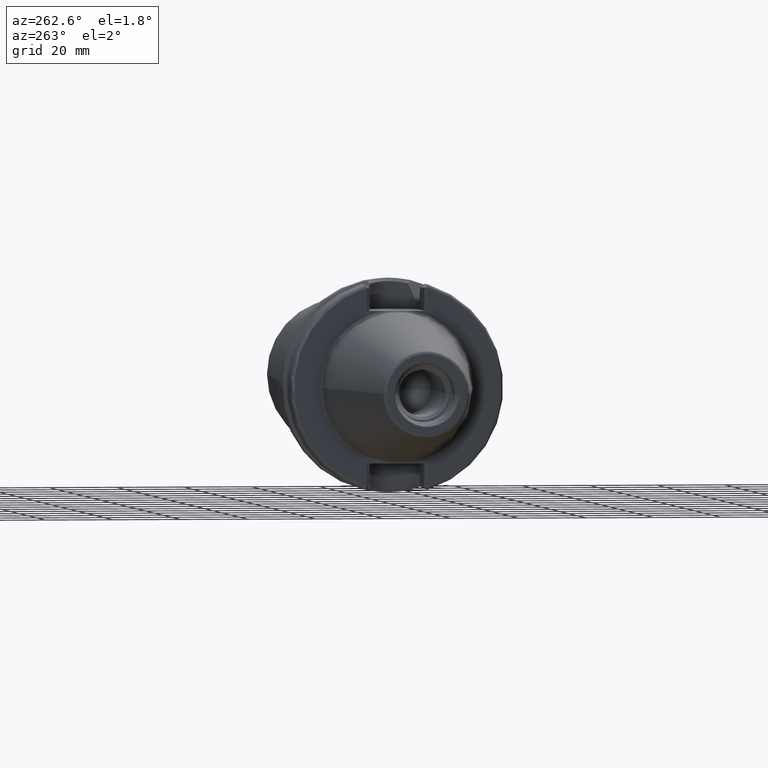
[diagram: clean part render]
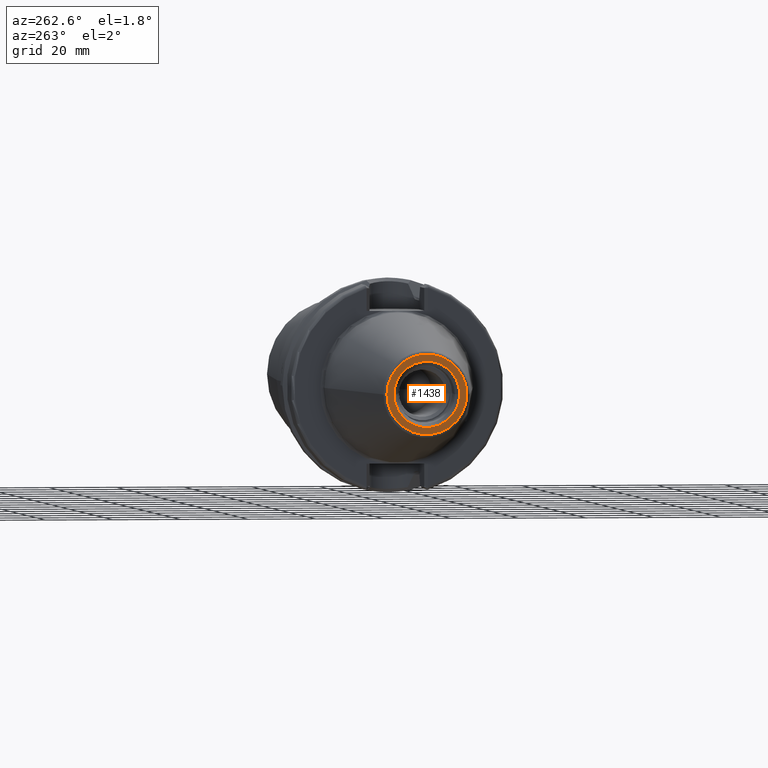
[diagram: same view with one face highlighted and labeled with its STEP entity id]
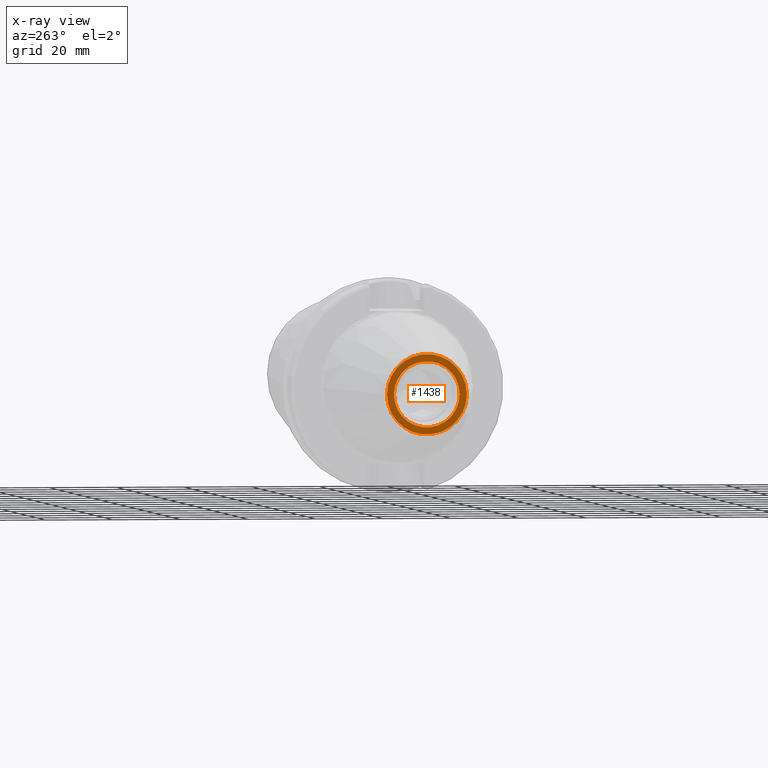
[diagram: x-ray of the same camera — body ghosted, the highlighted face saturated]
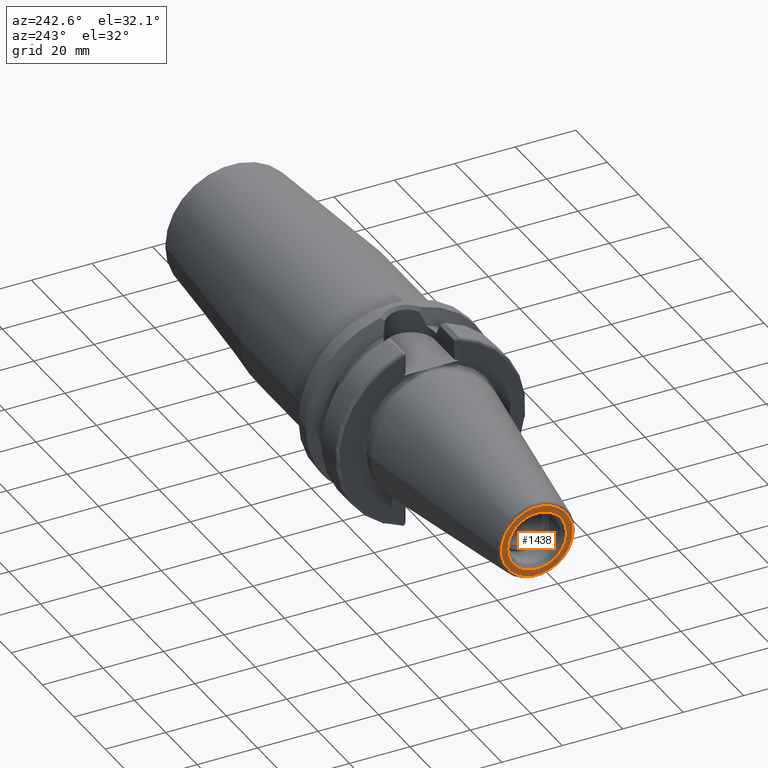
[diagram: same view with one face highlighted and labeled with its STEP entity id]
A machine part, auxiliary view. The second image highlights one B-rep face of the part: STEP entity #1438.
The next image is the same camera in x-ray: the body ghosted, the highlighted face saturated — about 0% of this face is hidden behind the body in this view.
A second angle (auxiliary view) of the same face is appended — the face is thin or edge-on in the first view.
In plain terms, the highlighted planar face has unit normal (1, 0, 0).
Its self-contained STEP definition (entity closure, byte-faithful):
#2=CARTESIAN_POINT('',(-6.54E1,0.E0,0.E0));
#3=DIRECTION('',(-1.E0,0.E0,0.E0));
#4=DIRECTION('',(0.E0,1.E0,0.E0));
#5=AXIS2_PLACEMENT_3D('',#2,#3,#4);
#7=CARTESIAN_POINT('',(-6.54E1,0.E0,0.E0));
#8=DIRECTION('',(1.E0,0.E0,0.E0));
#9=DIRECTION('',(0.E0,1.E0,0.E0));
#10=AXIS2_PLACEMENT_3D('',#7,#8,#9);
#12=CARTESIAN_POINT('',(-6.54E1,0.E0,0.E0));
#13=DIRECTION('',(1.E0,0.E0,0.E0));
#14=DIRECTION('',(0.E0,1.E0,0.E0));
#15=AXIS2_PLACEMENT_3D('',#12,#13,#14);
#17=CARTESIAN_POINT('',(-6.54E1,0.E0,0.E0));
#18=DIRECTION('',(1.E0,0.E0,0.E0));
#19=DIRECTION('',(0.E0,-1.E0,0.E0));
#20=AXIS2_PLACEMENT_3D('',#17,#18,#19);
#1171=CARTESIAN_POINT('',(-6.54E1,1.182197113897E1,0.E0));
#1173=VERTEX_POINT('',#1171);
#1175=CARTESIAN_POINT('',(-6.54E1,-1.182197113897E1,0.E0));
#1177=VERTEX_POINT('',#1175);
#1300=CARTESIAN_POINT('',(-6.54E1,9.730940107676E0,0.E0));
#1301=CARTESIAN_POINT('',(-6.54E1,-9.730940107676E0,0.E0));
#1302=VERTEX_POINT('',#1300);
#1303=VERTEX_POINT('',#1301);
#1421=CARTESIAN_POINT('',(-6.54E1,0.E0,0.E0));
#1422=DIRECTION('',(1.E0,0.E0,0.E0));
#1423=DIRECTION('',(0.E0,-1.E0,0.E0));
#1424=AXIS2_PLACEMENT_3D('',#1421,#1422,#1423);
#1425=PLANE('',#1424);
#1427=ORIENTED_EDGE('',*,*,#1426,.F.);
#1429=ORIENTED_EDGE('',*,*,#1428,.T.);
#1430=EDGE_LOOP('',(#1427,#1429));
#1431=FACE_OUTER_BOUND('',#1430,.F.);
#1433=ORIENTED_EDGE('',*,*,#1432,.F.);
#1435=ORIENTED_EDGE('',*,*,#1434,.F.);
#1436=EDGE_LOOP('',(#1433,#1435));
#1437=FACE_BOUND('',#1436,.F.);
#1438=ADVANCED_FACE('',(#1431,#1437),#1425,.F.);
#6=CIRCLE('',#5,1.182197113897E1);
#11=CIRCLE('',#10,1.182197113897E1);
#16=CIRCLE('',#15,9.730940107676E0);
#21=CIRCLE('',#20,9.730940107676E0);
#1426=EDGE_CURVE('',#1173,#1177,#6,.T.);
#1428=EDGE_CURVE('',#1173,#1177,#11,.T.);
#1432=EDGE_CURVE('',#1302,#1303,#16,.T.);
#1434=EDGE_CURVE('',#1303,#1302,#21,.T.);